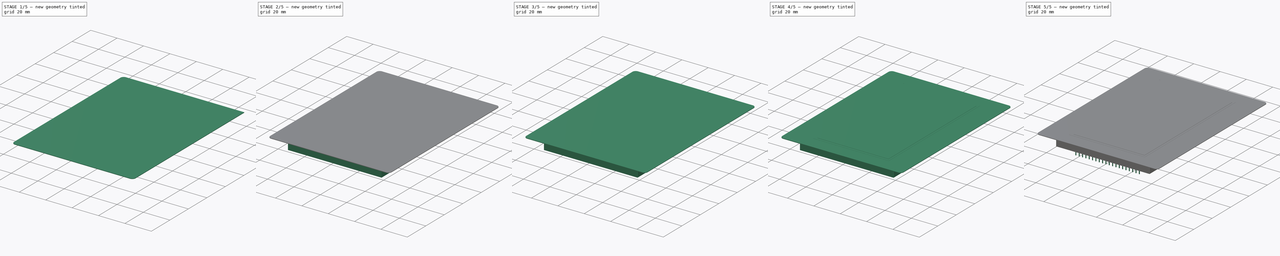
[diagram: build sequence overview — one tinted view per stage of 5, left to right]
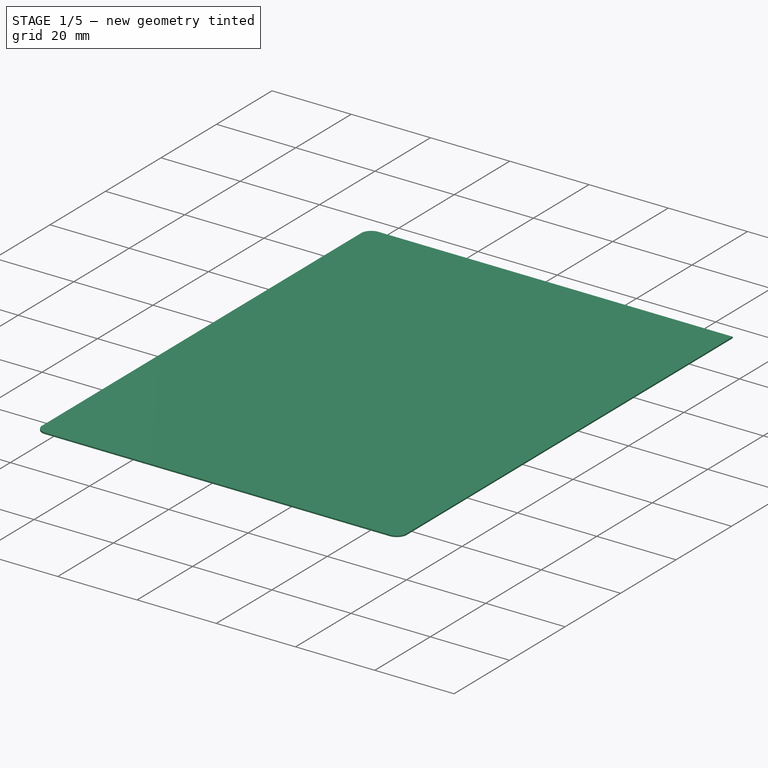
[diagram: stage 1 of 5 — iso view after this stage's code; geometry added in this stage tinted green]
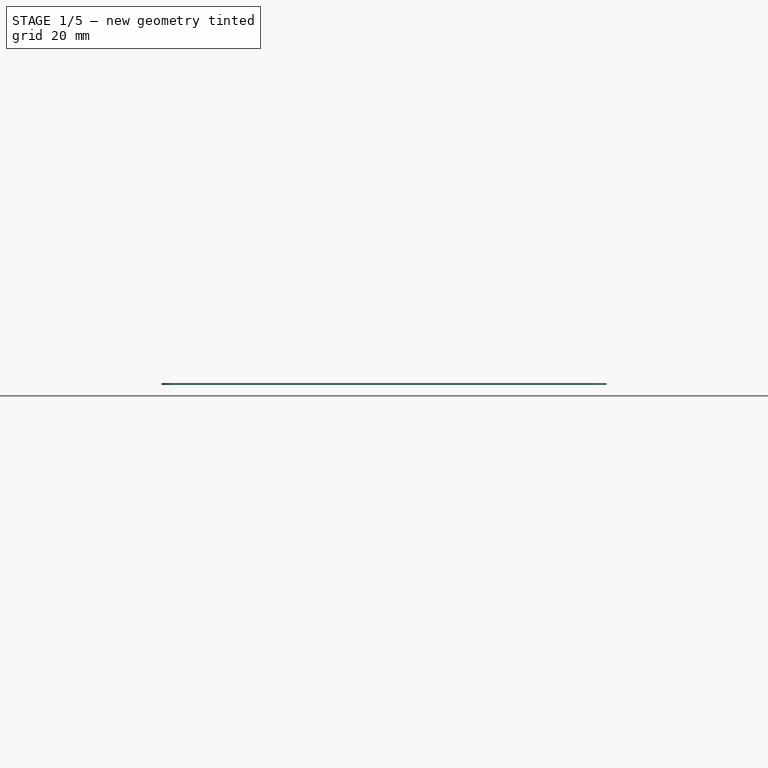
[diagram: stage 1 of 5 — front view after this stage's code; geometry added in this stage tinted green]
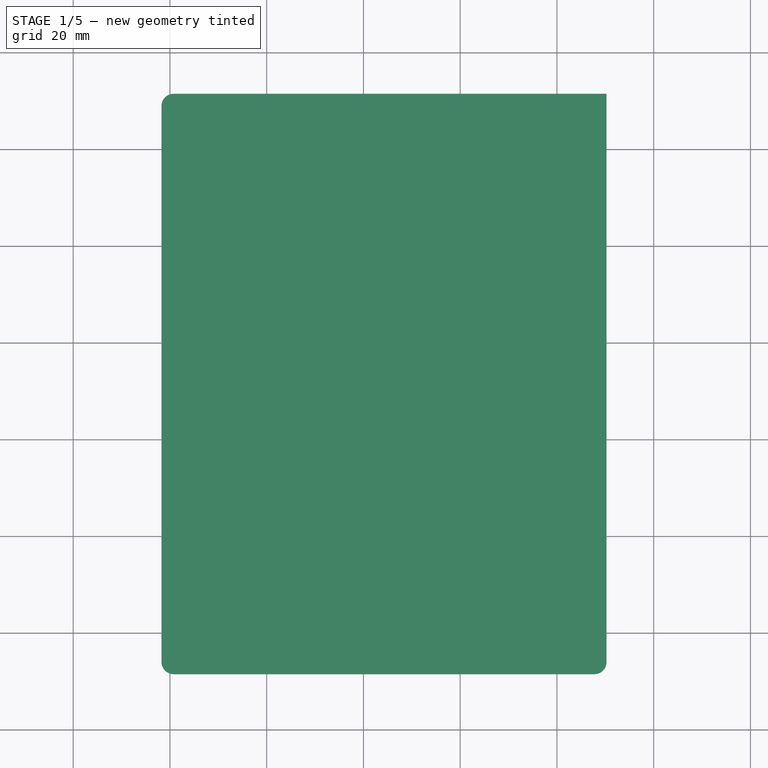
[diagram: stage 1 of 5 — top view after this stage's code; geometry added in this stage tinted green]
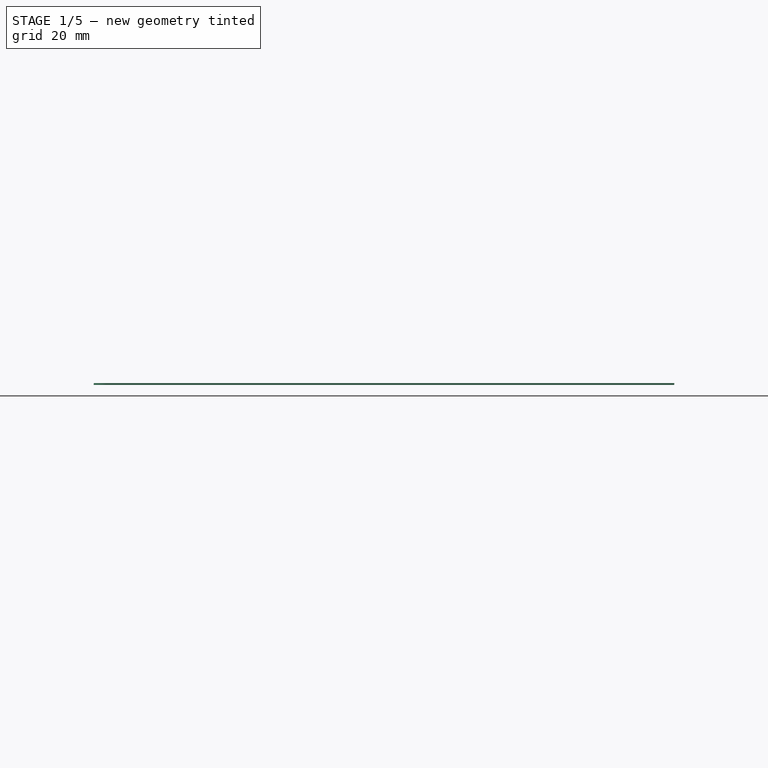
[diagram: stage 1 of 5 — right view after this stage's code; geometry added in this stage tinted green]
FCSTD DOCUMENT  (FreeCAD 0.17R11223 (Git))
Label: EA_eDIPTFT43-ATC_3
License: All rights reserved
LicenseURL: http://en.wikipedia.org/wiki/All_rights_reserved
objects: Part::Fillet×8, Part::Box×6, Part::MultiFuse×2, Sketcher::SketchObject×1, PartDesign::Pad×1, PartDesign::Body×1, Part::FeaturePython×1, Part::Cylinder×1
note: 22 computed .brp shape members not serialized (recipe doc carries the construction recipe); baked Part::Feature solids carry a one-line shape summary decoded from their .brp

FEATURE [Part::Box] Box003  label="DisplayBase"
  AttacherType = Attacher::AttachEngine3D
  Height = 0.35
  Length = 92
  Placement = pos=(-21.75,-108.5,10.2) rot=(0,0,1;0rad)
  Width = 120
FEATURE [Part::Fillet] Fillet004
  Base = -> Box003
  Edges = 1 edges r=2.5: [Edge3]
FEATURE [Part::Fillet] Fillet005
  Base = -> Fillet004
  Edges = 1 edges r=2.5: [Edge3]
FEATURE [Part::Fillet] Fillet006
  Base = -> Fillet005
  Edges = 1 edges r=2.5: [Edge17]
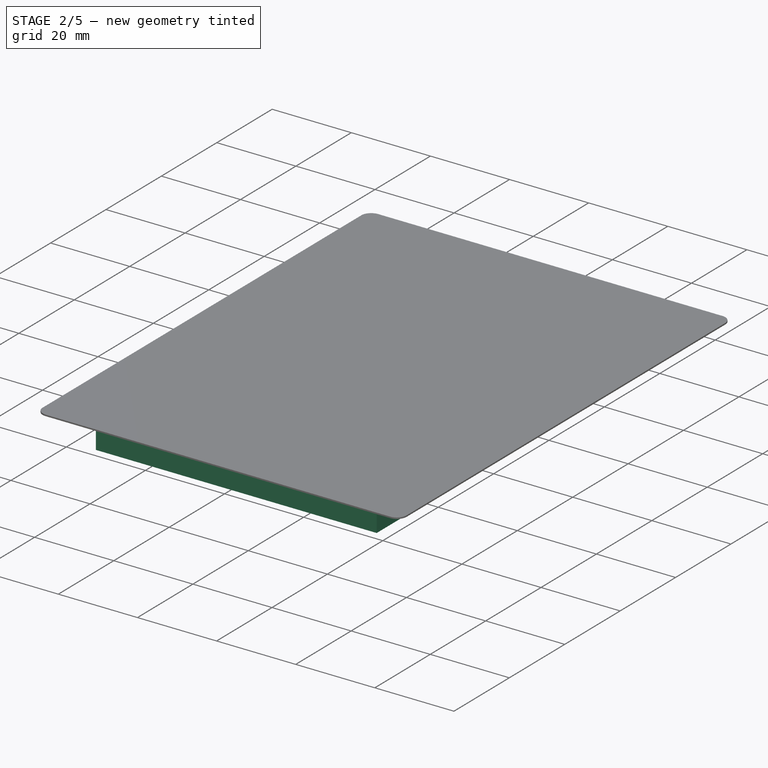
[diagram: stage 2 of 5 — iso view after this stage's code; geometry added in this stage tinted green]
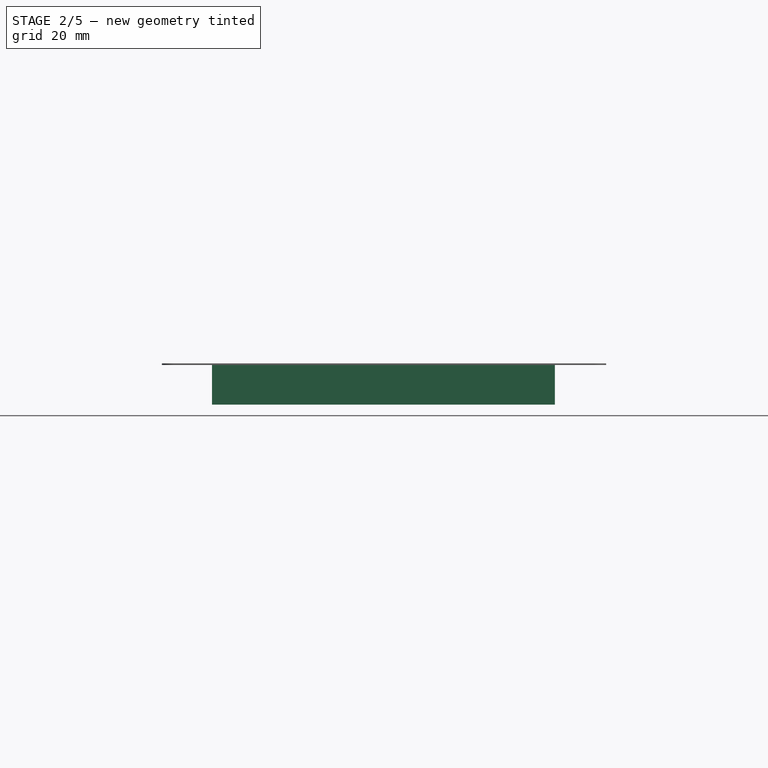
[diagram: stage 2 of 5 — front view after this stage's code; geometry added in this stage tinted green]
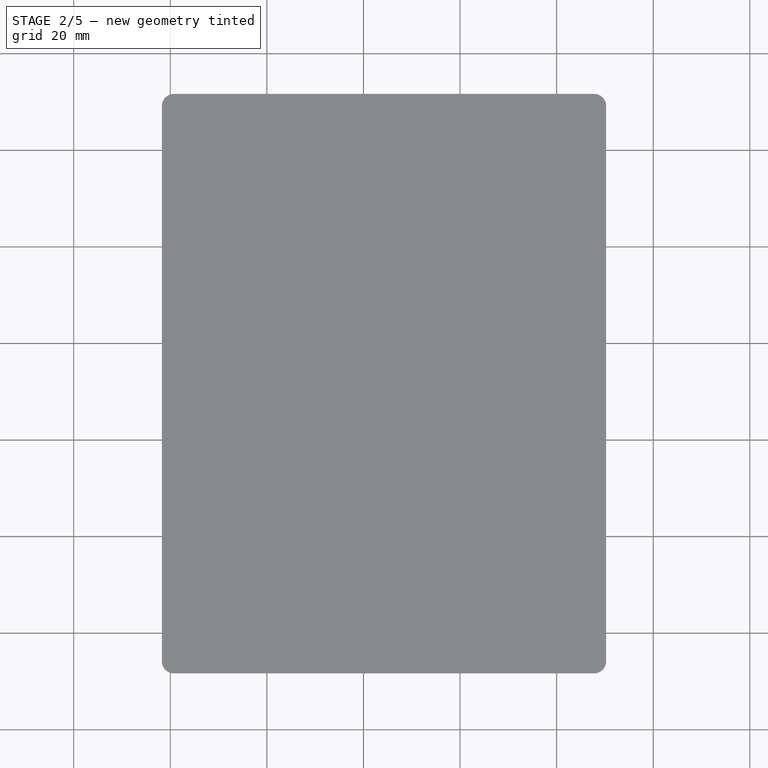
[diagram: stage 2 of 5 — top view after this stage's code; geometry added in this stage tinted green]
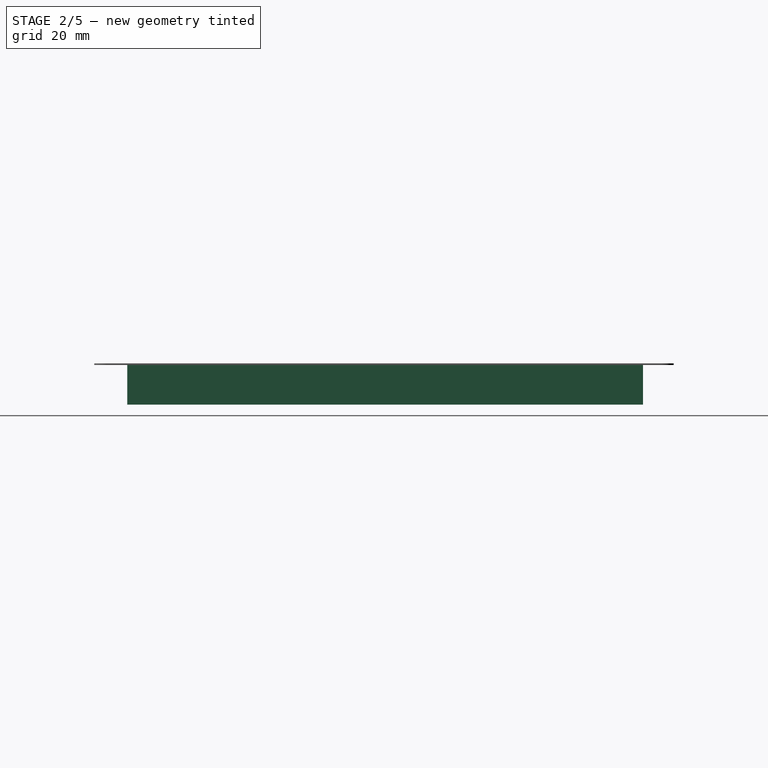
[diagram: stage 2 of 5 — right view after this stage's code; geometry added in this stage tinted green]
FEATURE [Sketcher::SketchObject] Sketch
  MapMode = 5
  Support = -> [XY_Plane]
  sketch-geometry (44):
    g0: LineSegment StartX=-11.37 StartY=5.14 StartZ=0 EndX=59.63 EndY=5.14 EndZ=0
    g1: LineSegment StartX=59.63 StartY=5.14 StartZ=0 EndX=59.63 EndY=-4.56 EndZ=0
    g2: LineSegment StartX=59.63 StartY=-4.56 StartZ=0 EndX=59.13 EndY=-4.56 EndZ=0
    g3: LineSegment StartX=59.13 StartY=-4.56 StartZ=0 EndX=59.13 EndY=-14.26 EndZ=0
    g4: LineSegment StartX=59.13 StartY=-14.26 StartZ=0 EndX=59.63 EndY=-14.26 EndZ=0
    g5: LineSegment StartX=59.63 StartY=-14.26 StartZ=0 EndX=59.63 EndY=-23.96 EndZ=0
    g6: LineSegment StartX=59.63 StartY=-23.96 StartZ=0 EndX=59.13 EndY=-23.96 EndZ=0
    g7: LineSegment StartX=59.13 StartY=-23.96 StartZ=0 EndX=59.13 EndY=-33.66 EndZ=0
    g8: LineSegment StartX=59.13 StartY=-33.66 StartZ=0 EndX=59.63 EndY=-33.66 EndZ=0
    g9: LineSegment StartX=59.63 StartY=-33.66 StartZ=0 EndX=59.63 EndY=-43.36 EndZ=0
    g10: LineSegment StartX=59.63 StartY=-43.36 StartZ=0 EndX=59.13 EndY=-43.36 EndZ=0
    g11: LineSegment StartX=59.13 StartY=-43.36 StartZ=0 EndX=59.13 EndY=-53.06 EndZ=0
    g12: LineSegment StartX=59.13 StartY=-53.06 StartZ=0 EndX=59.63 EndY=-53.06 EndZ=0
    g13: LineSegment StartX=59.63 StartY=-53.06 StartZ=0 EndX=59.63 EndY=-62.76 EndZ=0
    g14: LineSegment StartX=59.63 StartY=-62.76 StartZ=0 EndX=59.13 EndY=-62.76 EndZ=0
    g15: LineSegment StartX=59.13 StartY=-62.76 StartZ=0 EndX=59.13 EndY=-72.46 EndZ=0
    g16: LineSegment StartX=59.13 StartY=-72.46 StartZ=0 EndX=59.63 EndY=-72.46 EndZ=0
    g17: LineSegment StartX=59.63 StartY=-72.46 StartZ=0 EndX=59.63 EndY=-82.16 EndZ=0
    g18: LineSegment StartX=59.63 StartY=-82.16 StartZ=0 EndX=59.13 EndY=-82.16 EndZ=0
    g19: LineSegment StartX=59.13 StartY=-82.16 StartZ=0 EndX=59.13 EndY=-91.86 EndZ=0
    g20: LineSegment StartX=59.13 StartY=-91.86 StartZ=0 EndX=59.63 EndY=-91.86 EndZ=0
    g21: LineSegment StartX=59.63 StartY=-91.86 StartZ=0 EndX=59.63 EndY=-101.66 EndZ=0
    g22: LineSegment StartX=59.63 StartY=-101.66 StartZ=0 EndX=-11.37 EndY=-101.66 EndZ=0
    g23: LineSegment StartX=-11.37 StartY=-101.66 StartZ=0 EndX=-11.37 EndY=-91.86 EndZ=0
    g24: LineSegment StartX=-11.37 StartY=-91.86 StartZ=0 EndX=-10.87 EndY=-91.86 EndZ=0
    g25: LineSegment StartX=-10.87 StartY=-91.86 StartZ=0 EndX=-10.87 EndY=-82.16 EndZ=0
    g26: LineSegment StartX=-10.87 StartY=-82.16 StartZ=0 EndX=-11.37 EndY=-82.16 EndZ=0
    g27: LineSegment StartX=-11.37 StartY=-82.16 StartZ=0 EndX=-11.37 EndY=-72.46 EndZ=0
    g28: LineSegment StartX=-11.37 StartY=-72.46 StartZ=0 EndX=-10.87 EndY=-72.46 EndZ=0
    g29: LineSegment StartX=-10.87 StartY=-72.46 StartZ=0 EndX=-10.87 EndY=-62.76 EndZ=0
    g30: LineSegment StartX=-10.87 StartY=-62.76 StartZ=0 EndX=-11.37 EndY=-62.76 EndZ=0
    g31: LineSegment StartX=-11.37 StartY=-62.76 StartZ=0 EndX=-11.37 EndY=-53.06 EndZ=0
    g32: LineSegment StartX=-11.37 StartY=-53.06 StartZ=0 EndX=-10.87 EndY=-53.06 EndZ=0
    g33: LineSegment StartX=-10.87 StartY=-53.06 StartZ=0 EndX=-10.87 EndY=-43.36 EndZ=0
    g34: LineSegment StartX=-10.87 StartY=-43.36 StartZ=0 EndX=-11.37 EndY=-43.36 EndZ=0
    g35: LineSegment StartX=-11.37 StartY=-43.36 StartZ=0 EndX=-11.37 EndY=-33.66 EndZ=0
    g36: LineSegment StartX=-11.37 StartY=-33.66 StartZ=0 EndX=-10.87 EndY=-33.66 EndZ=0
    g37: LineSegment StartX=-10.87 StartY=-33.66 StartZ=0 EndX=-10.87 EndY=-23.96 EndZ=0
    g38: LineSegment StartX=-10.87 StartY=-23.96 StartZ=0 EndX=-11.37 EndY=-23.96 EndZ=0
    g39: LineSegment StartX=-11.37 StartY=-23.96 StartZ=0 EndX=-11.37 EndY=-14.26 EndZ=0
    g40: LineSegment StartX=-11.37 StartY=-14.26 StartZ=0 EndX=-10.87 EndY=-14.26 EndZ=0
    g41: LineSegment StartX=-10.87 StartY=-14.26 StartZ=0 EndX=-10.87 EndY=-4.56 EndZ=0
    g42: LineSegment StartX=-10.87 StartY=-4.56 StartZ=0 EndX=-11.37 EndY=-4.56 EndZ=0
    g43: LineSegment StartX=-11.37 StartY=-4.56 StartZ=0 EndX=-11.37 EndY=5.14 EndZ=0
  constraints (132):
    c: Horizontal(g0)
    c: Coincident(g0,g1)
    c: Vertical(g1)
    c: Coincident(g1,g2)
    c: Horizontal(g2)
    c: Coincident(g2,g3)
    c: Vertical(g3)
    c: Coincident(g3,g4)
    c: Horizontal(g4)
    c: Coincident(g4,g5)
    c: Vertical(g5)
    c: Coincident(g5,g6)
    c: Horizontal(g6)
    c: Coincident(g6,g7)
    c: Vertical(g7)
    c: Coincident(g7,g8)
    c: Horizontal(g8)
    c: Coincident(g8,g9)
    c: Vertical(g9)
    c: Coincident(g9,g10)
    c: Horizontal(g10)
    c: Coincident(g10,g11)
    c: Vertical(g11)
    c: Coincident(g11,g12)
    c: Horizontal(g12)
    c: Coincident(g12,g13)
    c: Vertical(g13)
    c: Coincident(g13,g14)
    c: Horizontal(g14)
    c: Coincident(g14,g15)
    c: Vertical(g15)
    c: Coincident(g15,g16)
    c: Horizontal(g16)
    c: Coincident(g16,g17)
    c: Vertical(g17)
    c: Coincident(g17,g18)
    c: Horizontal(g18)
    c: Coincident(g18,g19)
    c: Vertical(g19)
    c: Coincident(g19,g20)
    c: Horizontal(g20)
    c: Coincident(g20,g21)
    c: Vertical(g21)
    c: Coincident(g21,g22)
    c: Horizontal(g22)
    c: Coincident(g22,g23)
    c: Vertical(g23)
    c: Coincident(g23,g24)
    c: Horizontal(g24)
    c: Coincident(g24,g25)
    c: Vertical(g25)
    c: Coincident(g25,g26)
    c: Horizontal(g26)
    c: Coincident(g26,g27)
    c: Vertical(g27)
    c: Coincident(g27,g28)
    c: Horizontal(g28)
    c: Coincident(g28,g29)
    c: Vertical(g29)
    c: Coincident(g29,g30)
    c: Horizontal(g30)
    c: Coincident(g30,g31)
    c: Vertical(g31)
    c: Coincident(g31,g32)
    c: Horizontal(g32)
    c: Coincident(g32,g33)
    c: Vertical(g33)
    c: Coincident(g33,g34)
    c: Horizontal(g34)
    c: Coincident(g34,g35)
    c: Vertical(g35)
    c: Coincident(g35,g36)
    c: Horizontal(g36)
    c: Coincident(g36,g37)
    c: Vertical(g37)
    c: Coincident(g37,g38)
    c: Horizontal(g38)
    c: Coincident(g38,g39)
    c: Vertical(g39)
    c: Coincident(g39,g40)
    c: Horizontal(g40)
    c: Coincident(g40,g41)
    c: Vertical(g41)
    c: Coincident(g41,g42)
    c: Horizontal(g42)
    c: Coincident(g42,g43)
    c: Coincident(g43,g0)
    c: DistanceX(g0,g0) = 71
    c: DistanceX(g22,g21) = 71
    c: DistanceY(g21,g0) = 106.8
    c: DistanceX(g2,g2) = 0.5
    c: DistanceX(g4,g4) = 0.5
    c: DistanceX(g6,g6) = 0.5
    c: DistanceX(g8,g8) = 0.5
    c: DistanceX(g10,g10) = 0.5
    c: DistanceX(g12,g12) = 0.5
    c: DistanceX(g14,g14) = 0.5
    c: DistanceX(g16,g16) = 0.5
    c: DistanceX(g18,g18) = 0.5
    c: DistanceX(g20,g20) = 0.5
    c: DistanceY(g1,g1) = 9.7
    c: DistanceY(g3,g3) = 9.7
    c: DistanceY(g5,g5) = 9.7
    c: DistanceY(g7,g7) = 9.7
    c: DistanceY(g9,g9) = 9.7
    c: DistanceY(g11,g11) = 9.7
    c: DistanceY(g13,g13) = 9.7
    c: DistanceY(g15,g15) = 9.7
    c: DistanceY(g17,g17) = 9.7
    c: DistanceX(g0,g42) = 0
    c: DistanceY(g19,g19) = 9.7
    c: DistanceX(g42,g42) = 0.5
    c: DistanceX(g40,g40) = 0.5
    c: DistanceX(g38,g38) = 0.5
    c: DistanceX(g36,g36) = 0.5
    c: DistanceX(g34,g34) = 0.5
    c: DistanceX(g32,g32) = 0.5
    c: DistanceX(g30,g30) = 0.5
    c: DistanceX(g28,g28) = 0.5
    c: DistanceX(g26,g26) = 0.5
    c: DistanceY(g43,g43) = 9.7
    c: DistanceY(g41,g41) = 9.7
    c: DistanceY(g39,g39) = 9.7
    c: DistanceY(g37,g37) = 9.7
    c: DistanceY(g35,g35) = 9.7
    c: DistanceY(g33,g33) = 9.7
    c: DistanceY(g31,g31) = 9.7
    c: DistanceY(g29,g29) = 9.7
    c: DistanceY(g27,g27) = 9.7
    c: DistanceY(g25,g25) = 9.7
    c: DistanceY(g-1,g0) = 5.14
    c: DistanceX(g0,g-1) = 11.37
FEATURE [PartDesign::Pad] Pad
  Length = 8.4
  Length2 = 100
  Profile = -> Sketch
  Type = 0
FEATURE [Part::MultiFuse] Fusion
  Placement = pos=(0,0,2) rot=(0,0,1;0rad)
  Shapes = -> [Body,Pad]
FEATURE [Part::Fillet] Fillet
  Base = -> Fusion
  Edges = 12 edges r=0.3: [Edge3,Edge7,Edge51,Edge53,Edge55,Edge57,Edge59,Edge61,Edge63,Edge65,Edge67,Edge69]
FEATURE [Part::Fillet] Fillet007
  Base = -> Fillet006
  Edges = 1 edges r=2.5: [Edge15]
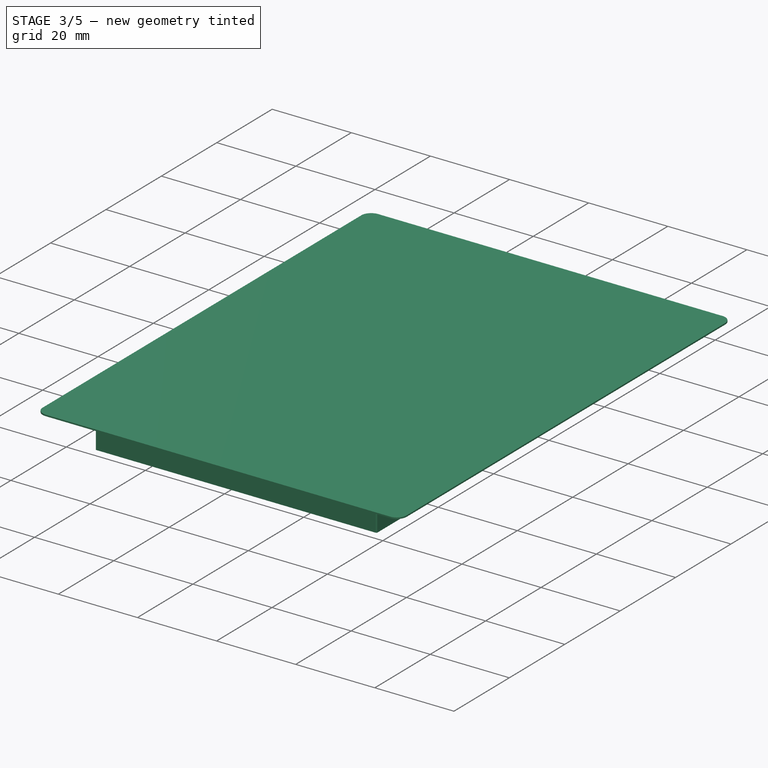
[diagram: stage 3 of 5 — iso view after this stage's code; geometry added in this stage tinted green]
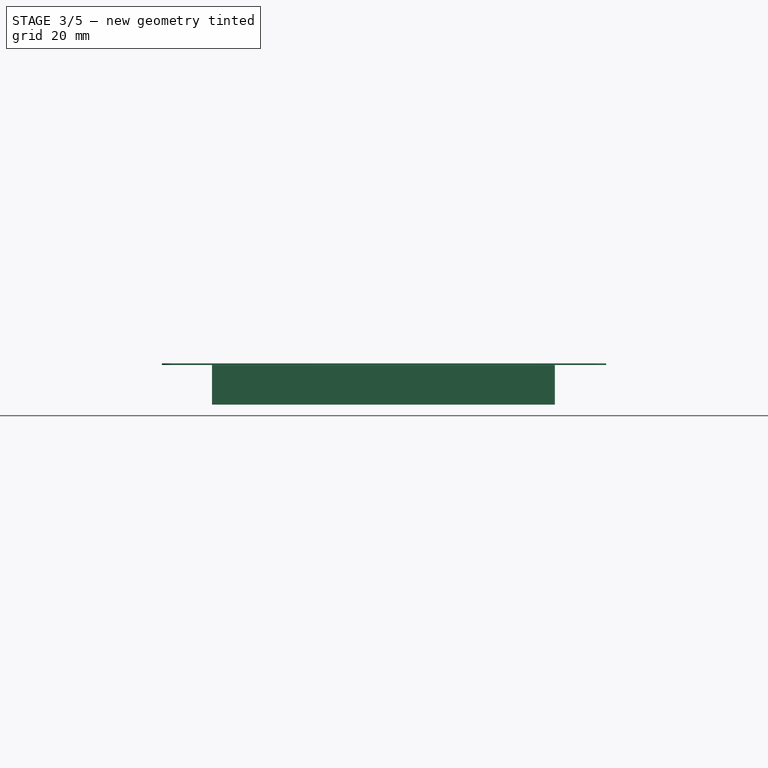
[diagram: stage 3 of 5 — front view after this stage's code; geometry added in this stage tinted green]
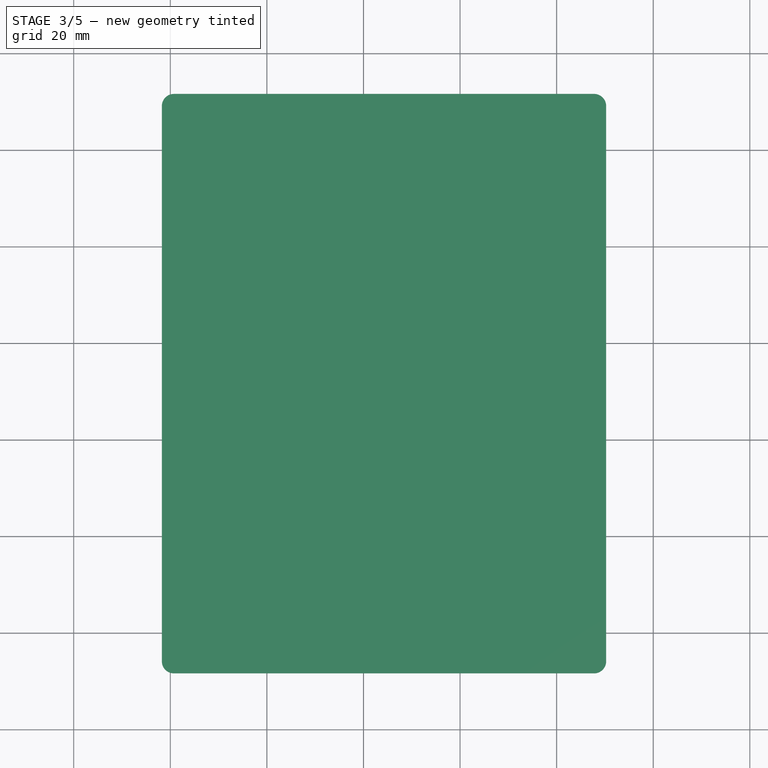
[diagram: stage 3 of 5 — top view after this stage's code; geometry added in this stage tinted green]
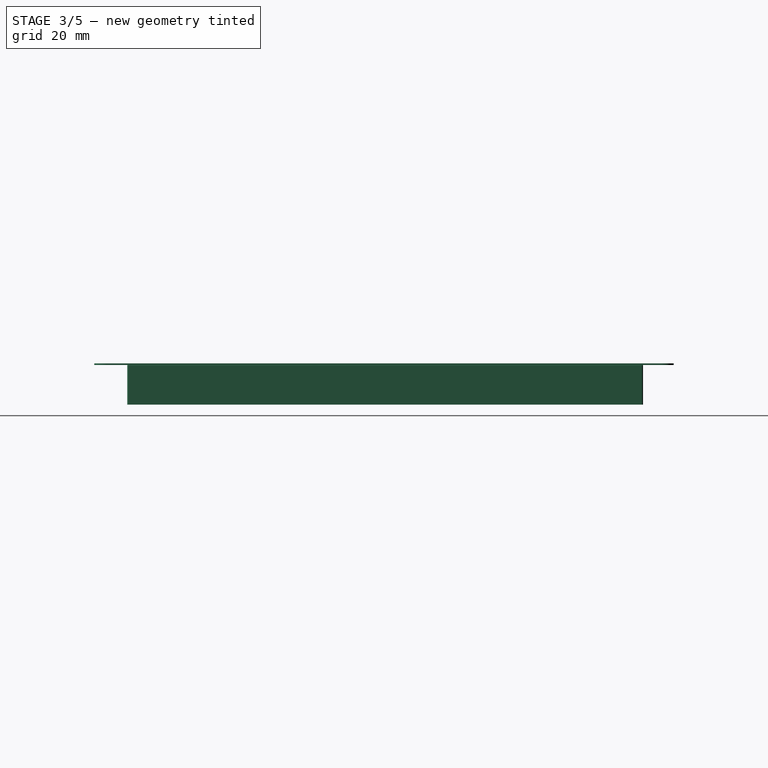
[diagram: stage 3 of 5 — right view after this stage's code; geometry added in this stage tinted green]
FEATURE [Part::Fillet] Fillet001
  Base = -> Fillet
  Edges = 11 edges r=0.3: [Edge83,Edge85,Edge87,Edge89,Edge91,Edge93,Edge95,Edge97,Edge98,Edge99,Edge100]
FEATURE [Part::Fillet] Fillet002
  Base = -> Fillet001
  Edges = 7 edges r=0.3: [Edge1,Edge3,Edge5,Edge7,Edge9,Edge11,Edge13]
FEATURE [Part::Fillet] Fillet003
  Base = -> Fillet002
  Edges = 13 edges r=0.3: [Edge20,Edge22,Edge24,Edge26,Edge28,Edge30,Edge32,Edge34,Edge36,Edge38,Edge40,Edge42,Edge44]
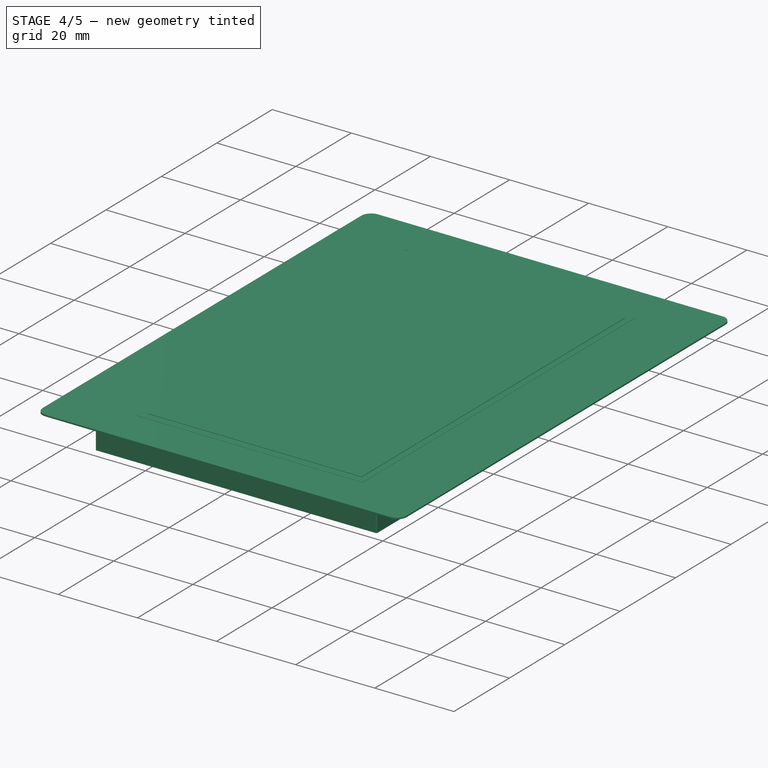
[diagram: stage 4 of 5 — iso view after this stage's code; geometry added in this stage tinted green]
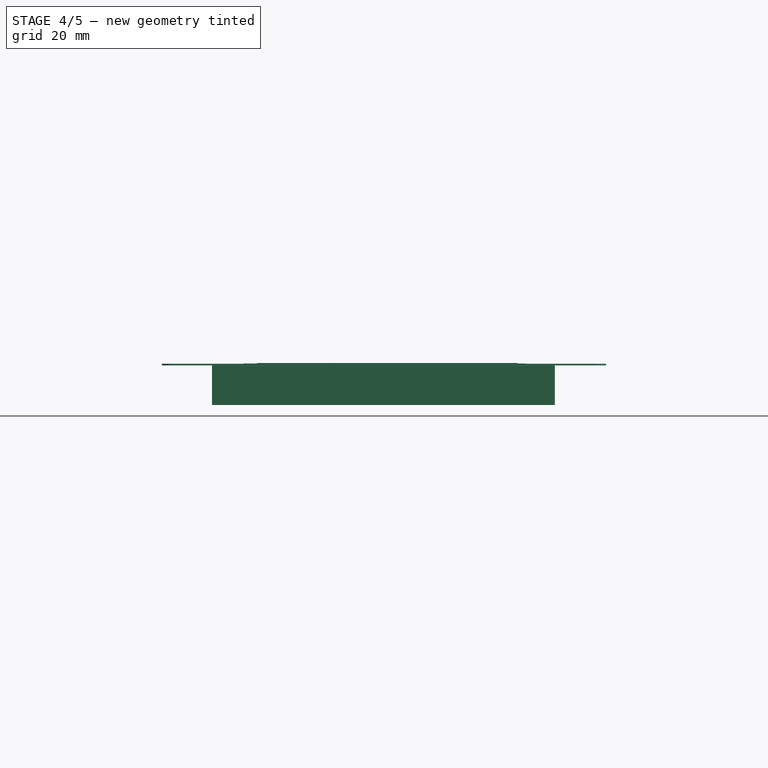
[diagram: stage 4 of 5 — front view after this stage's code; geometry added in this stage tinted green]
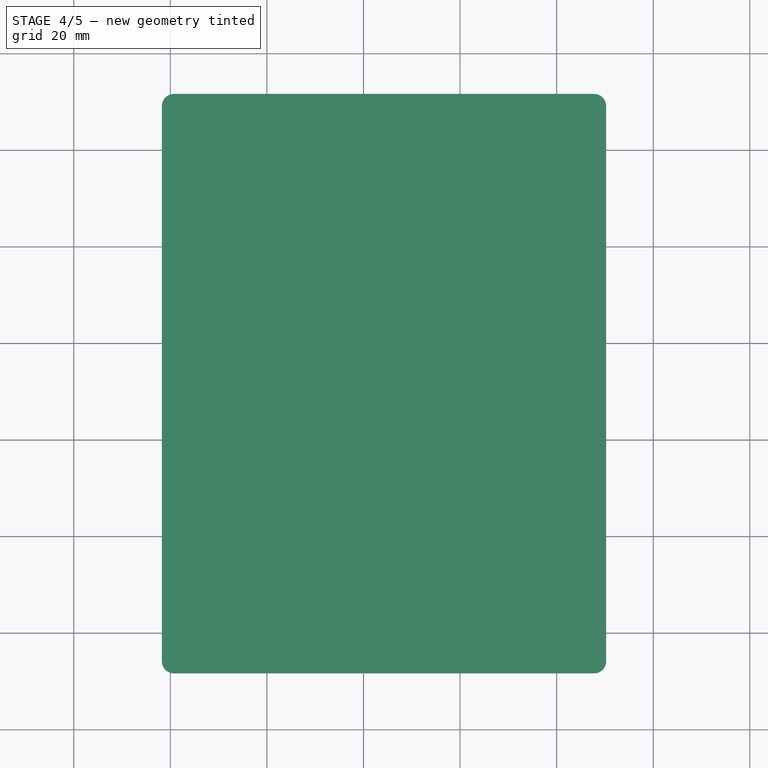
[diagram: stage 4 of 5 — top view after this stage's code; geometry added in this stage tinted green]
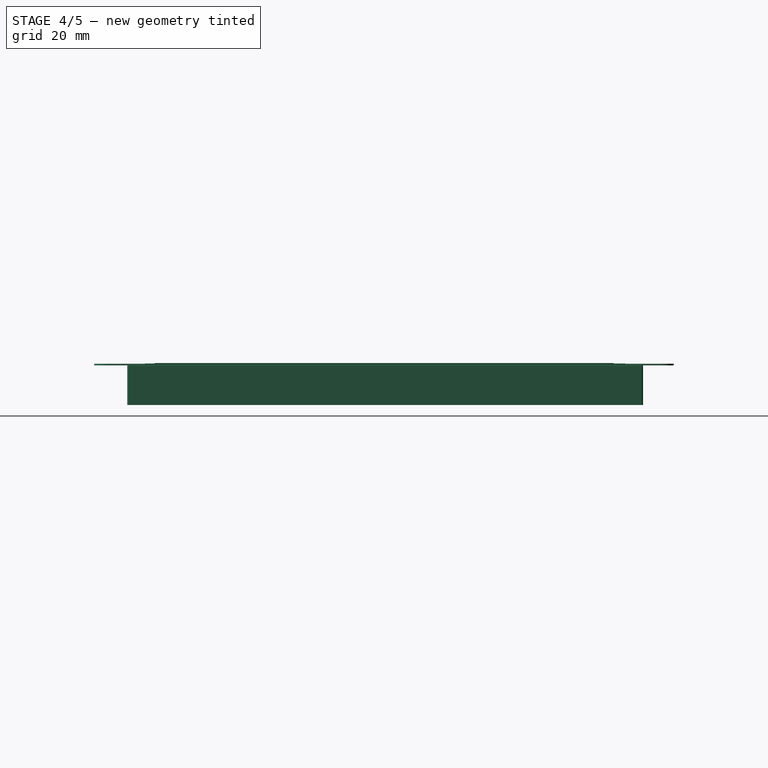
[diagram: stage 4 of 5 — right view after this stage's code; geometry added in this stage tinted green]
FEATURE [Part::Box] Box004  label="DisplayFrame"
  AttacherType = Attacher::AttachEngine3D
  Height = 0.3
  Length = 57.5
  Placement = pos=(-4,-98,10.3) rot=(0,0,1;0rad)
  Width = 98.7
FEATURE [Part::Box] Box005  label="Display"
  AttacherType = Attacher::AttachEngine3D
  Height = 0.3
  Length = 53.86
  Placement = pos=(-2,-96,10.4) rot=(0,0,1;0rad)
  Width = 95.04
FEATURE [Part::Cylinder] Cylinder
  Angle = 360
  AttacherType = Attacher::AttachEngine3D
  Height = 0.3
  Placement = pos=(-4.3,0.9,10.3) rot=(0,0,1;0rad)
  Radius = 0.5
FEATURE [Part::MultiFuse] Fusion001  label="DisplayFrame001"
  Shapes = -> [Box004,Cylinder]
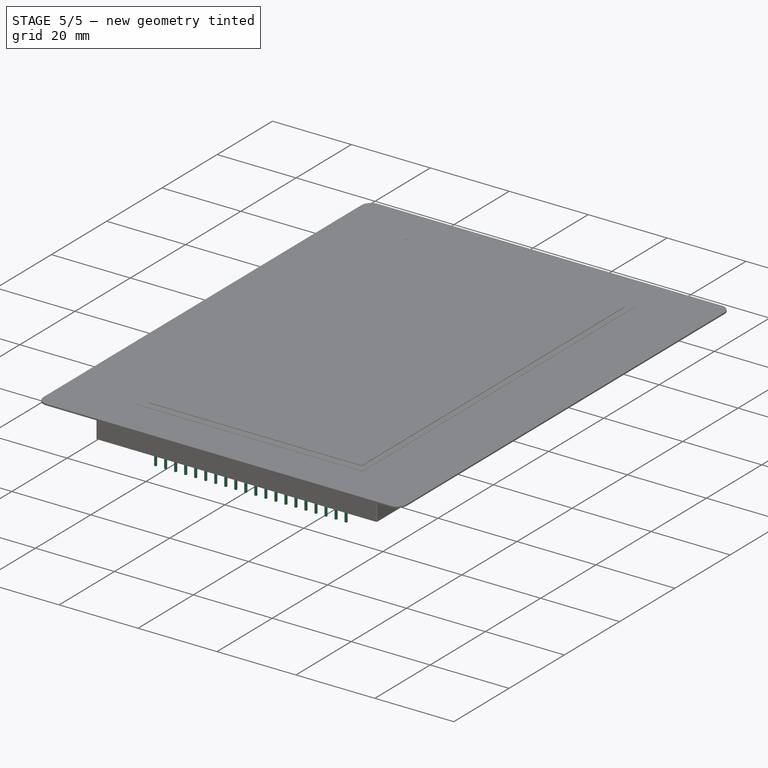
[diagram: stage 5 of 5 — iso view after this stage's code; geometry added in this stage tinted green]
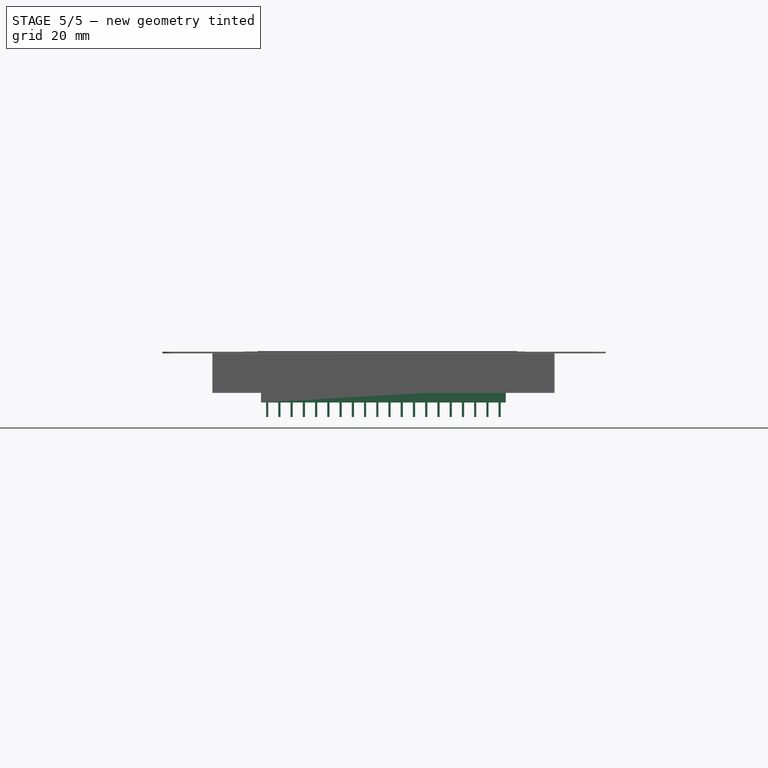
[diagram: stage 5 of 5 — front view after this stage's code; geometry added in this stage tinted green]
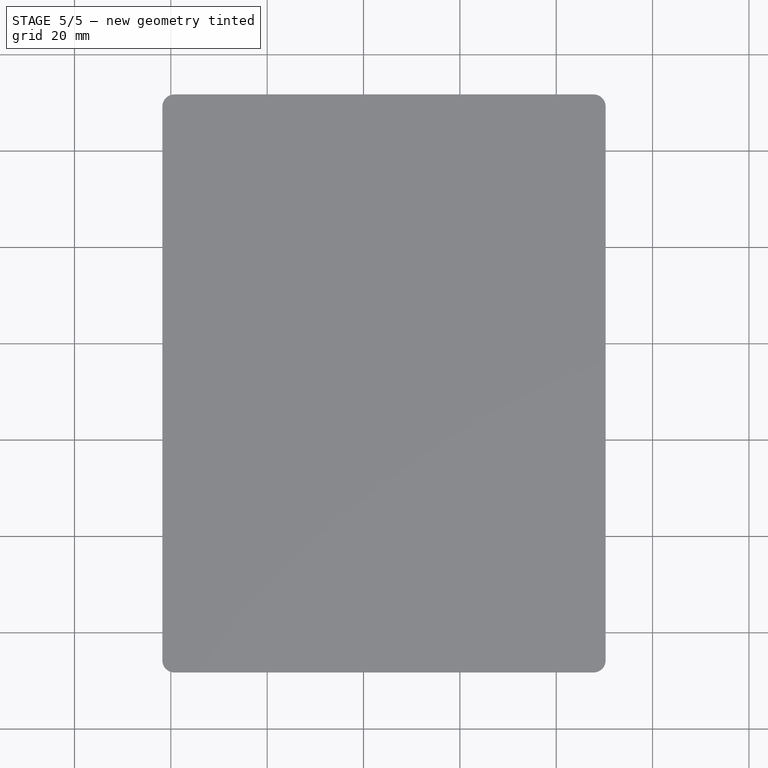
[diagram: stage 5 of 5 — top view after this stage's code; geometry added in this stage tinted green]
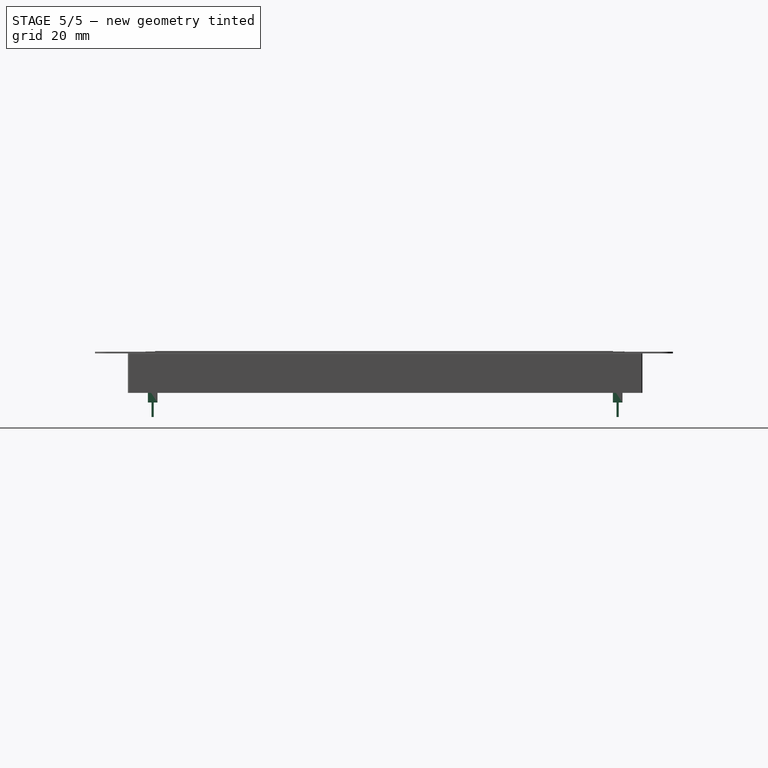
[diagram: stage 5 of 5 — right view after this stage's code; geometry added in this stage tinted green]
FEATURE [PartDesign::Body] Body
  Group = -> [Sketch,Pad]
  Origin = -> BodyOrigin
  Tip = -> Pad
FEATURE [Part::Box] Box  label="Kub"
  AttacherType = Attacher::AttachEngine3D
  Height = 3
  Length = 50.8
  Placement = pos=(-1.27,-1,0) rot=(0,0,1;0rad)
  Width = 2
FEATURE [Part::Box] Box001  label="Kub001"
  AttacherType = Attacher::AttachEngine3D
  Height = 3
  Length = 50.8
  Placement = pos=(-1.27,-97.52,0) rot=(0,0,1;0rad)
  Width = 2
FEATURE [Part::Box] Box002  label="Pin"
  AttacherType = Attacher::AttachEngine3D
  Height = 3.5
  Length = 0.46
  Placement = pos=(-0.23,-0.23,-3) rot=(0,0,1;0rad)
  Width = 0.46
FEATURE [Part::FeaturePython] Array  label="Pins"  # Draft array (typed FeaturePython)
  Angle = 360
  ArrayType = 0
  Axis = (0,0,1)
  Base = -> Box002
  Center = (0,0,0)
  Fuse = false
  IntervalAxis = (0,0,0)
  IntervalX = (2.54,0,0)
  IntervalY = (0,-96.52,0)
  IntervalZ = (0,0,0)
  NumberPolar = 1
  NumberX = 20
  NumberY = 2
  NumberZ = 1
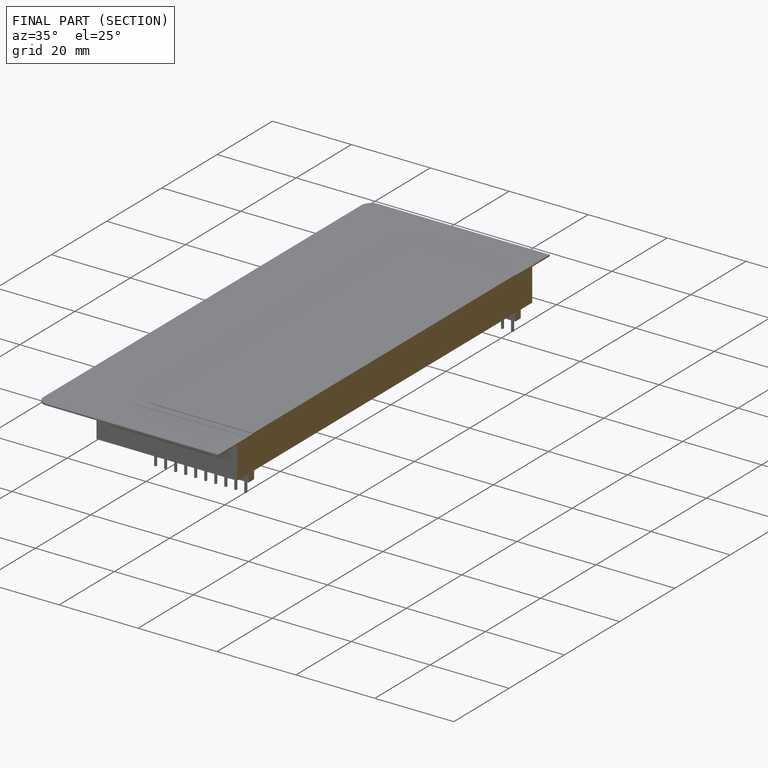
[diagram: finished part — half-section view (interior)]
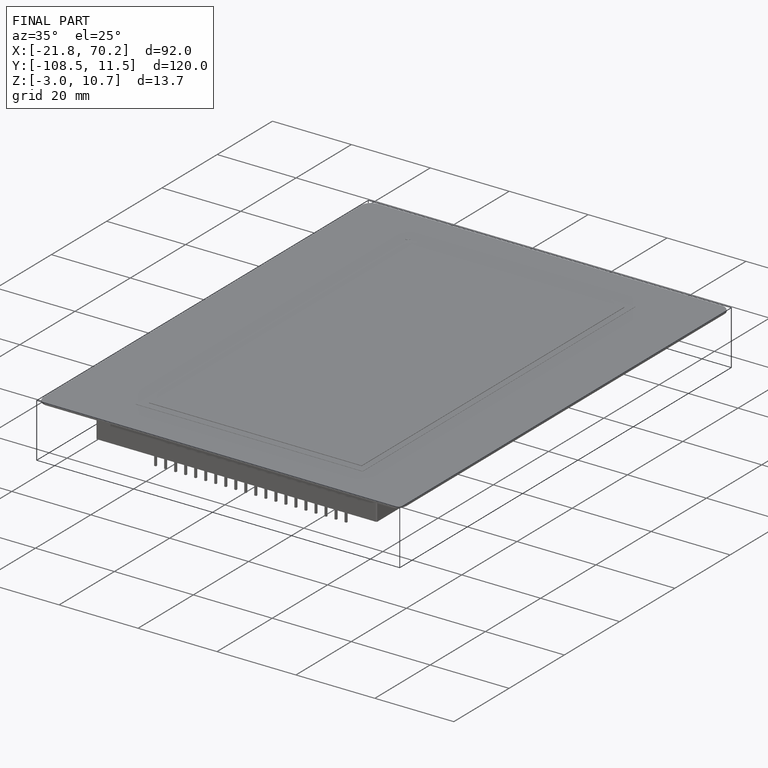
[diagram: finished part — iso view with bounding-box wireframe]
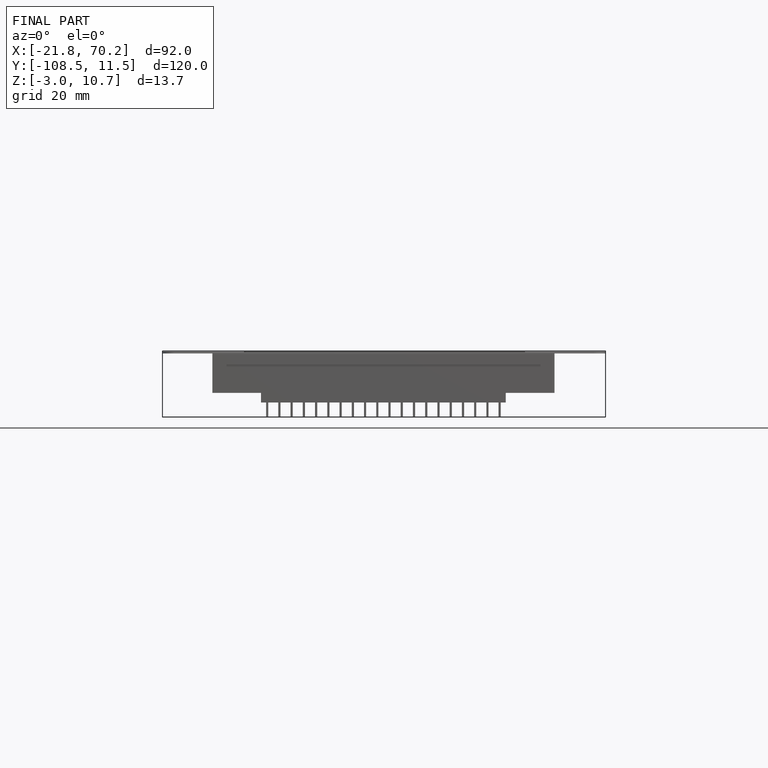
[diagram: finished part — front view with bounding-box wireframe]
